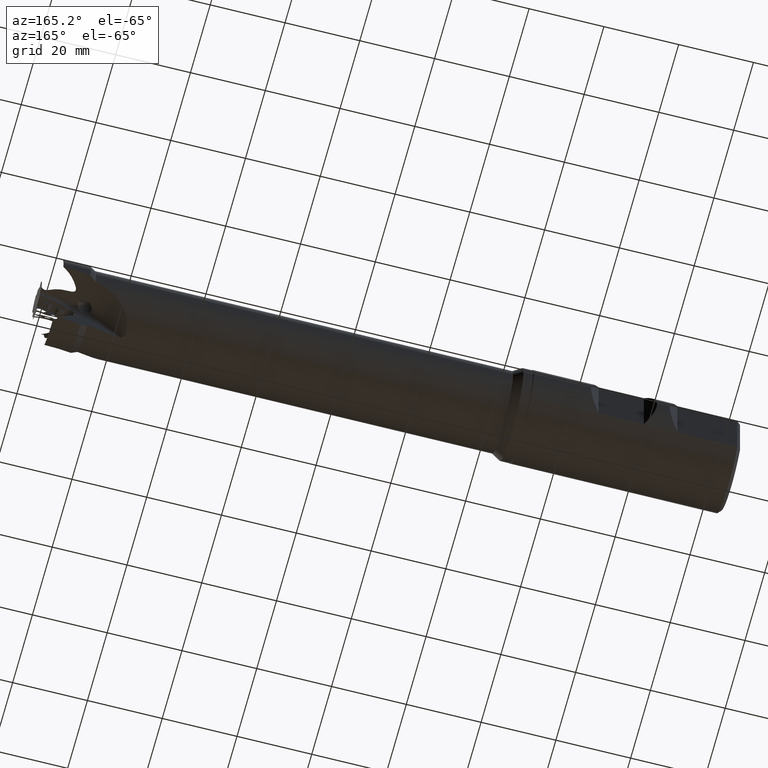
[diagram: clean part render]
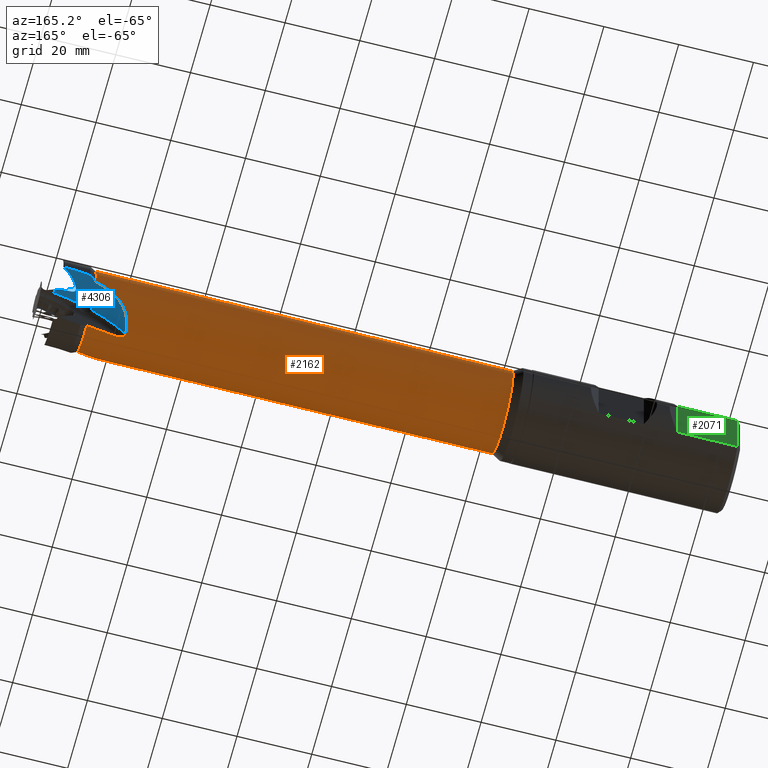
[diagram: same view with three faces highlighted in distinct colors, each labeled with its STEP entity id]
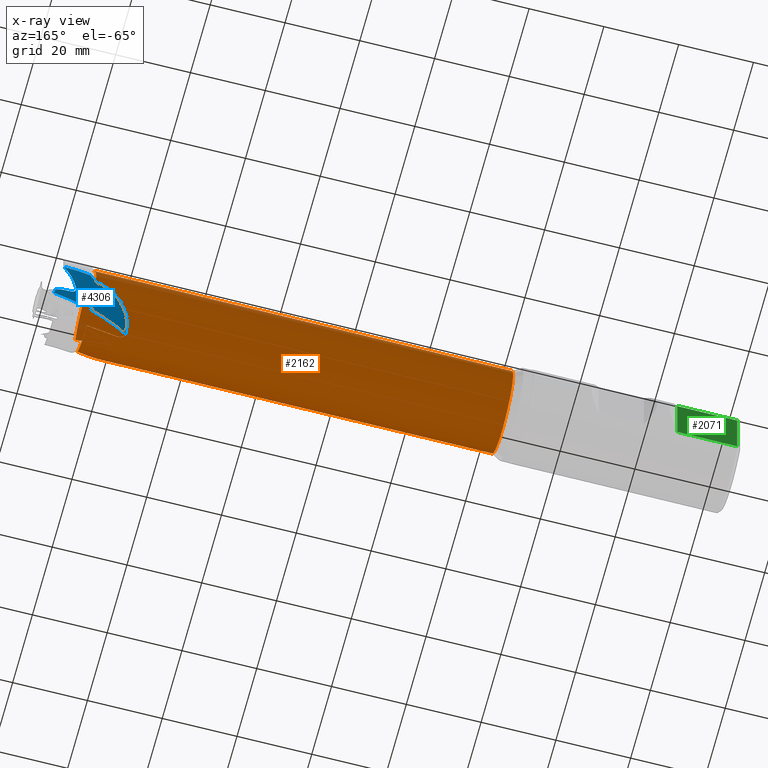
[diagram: x-ray of the same camera — body ghosted, the three highlighted faces saturated]
A machine part, auxiliary view with three faces highlighted in distinct colors.
The next image is the same camera in x-ray (body ghosted, the three faces saturated) — at least one of them is partly hidden behind the body in this view.
Their STEP definitions:

[orange] entity #2162 — the highlighted cylindrical surface (bore or boss wall) has radius 11 mm, axis along (1, -0, -0).
#28 = CARTESIAN_POINT ( 'NONE',  ( -13.03205080756886000, -7.992576462500347900, -7.557692868269073800 ) ) ;
#29 = CARTESIAN_POINT ( 'NONE',  ( 0.0000000000000000000, 0.0000000000000000000, 0.0000000000000000000 ) ) ;
#41 = ORIENTED_EDGE ( 'NONE', *, *, #3424, .F. ) ;
#76 = CARTESIAN_POINT ( 'NONE',  ( -21.74130905222150300, -9.710899927614750700, 5.167140499580635400 ) ) ;
#86 = CYLINDRICAL_SURFACE ( 'NONE', #2298, 10.99999999999999100 ) ;
#100 = EDGE_CURVE ( 'NONE', #151, #4425, #995, .T. ) ;
#114 = DIRECTION ( 'NONE',  ( 0.0000000000000000000, 0.0000000000000000000, -1.000000000000000000 ) ) ;
#129 = CARTESIAN_POINT ( 'NONE',  ( -23.07953077838762500, 6.821790193751641400, 8.636409143142937900 ) ) ;
#146 = VERTEX_POINT ( 'NONE', #2946 ) ;
#151 = VERTEX_POINT ( 'NONE', #2107 ) ;
#163 = CARTESIAN_POINT ( 'NONE',  ( -13.03205080756865200, -2.548865786671219000, 10.70062069234942500 ) ) ;
#168 = ORIENTED_EDGE ( 'NONE', *, *, #1180, .T. ) ;
#171 = CARTESIAN_POINT ( 'NONE',  ( -23.07953077838761400, -10.89024481231380600, 1.589639035504989900 ) ) ;
#184 = CARTESIAN_POINT ( 'NONE',  ( -19.21292515205994200, -9.992846947491623100, -4.620180101903342200 ) ) ;
#191 = CARTESIAN_POINT ( 'NONE',  ( -21.91978228289450900, 4.228789323558888000, 10.15973805421889700 ) ) ;
#240 = CARTESIAN_POINT ( 'NONE',  ( -23.01246835448725700, 9.077304187379464700, 6.215843227946305800 ) ) ;
#241 = CARTESIAN_POINT ( 'NONE',  ( -23.28485158735117700, 3.073329182164300300, -10.58547047038410900 ) ) ;
#253 = CARTESIAN_POINT ( 'NONE',  ( -19.73592067083128000, 8.710639764690409200, -6.738612503196965700 ) ) ;
#260 = CARTESIAN_POINT ( 'NONE',  ( -15.77118005887247600, -10.02731844747541200, 4.535187014893050000 ) ) ;
#283 = CARTESIAN_POINT ( 'NONE',  ( -23.34496563206964100, 1.438568477194369600, -10.90608010124612200 ) ) ;
#295 = CARTESIAN_POINT ( 'NONE',  ( -13.03205080756865200, -2.548865786671219000, 10.70062069234942500 ) ) ;
#375 = AXIS2_PLACEMENT_3D ( 'NONE', #1803, #4311, #2166 ) ;
#396 = B_SPLINE_CURVE_WITH_KNOTS ( 'NONE', 3,
 ( #983, #623, #1329, #3861, #1700, #4203, #2061, #4565, #2416, #283, #2786, #640 ),
 .UNSPECIFIED., .F., .F.,
 ( 4, 2, 2, 2, 2, 4 ),
 ( 0.009072709788329505800, 0.009755684572878274900, 0.01043865935742704400, 0.01112163414197581300, 0.01146312153425019800, 0.01180460892652458200 ),
 .UNSPECIFIED. ) ;
#428 = CARTESIAN_POINT ( 'NONE',  ( -23.21839118745727900, -10.03771621760265700, 4.500312577766781200 ) ) ;
#444 = VERTEX_POINT ( 'NONE', #2743 ) ;
#480 =( BOUNDED_CURVE ( )  B_SPLINE_CURVE ( 3, ( #2442, #2359, #2729, #580 ),
 .UNSPECIFIED., .F., .F. ) 
 B_SPLINE_CURVE_WITH_KNOTS ( ( 4, 4 ),
 ( 4.749592657969652800, 4.842060696496028900 ),
 .UNSPECIFIED. ) 
 CURVE ( )  GEOMETRIC_REPRESENTATION_ITEM ( )  RATIONAL_B_SPLINE_CURVE ( ( 1.000000000000000000, 0.9992875987359817200, 0.9992875987359817200, 1.000000000000000000 ) ) 
 REPRESENTATION_ITEM ( '' )  );
#485 = CARTESIAN_POINT ( 'NONE',  ( -22.78875681886087500, 5.971228752657064700, 9.244669097611666300 ) ) ;
#499 = CARTESIAN_POINT ( 'NONE',  ( -21.73755103584931400, 3.936967133131042300, 10.27578233868565100 ) ) ;
#526 = CARTESIAN_POINT ( 'NONE',  ( -22.78875681886088600, -10.99173266444119600, 0.5489012428032317100 ) ) ;
#540 = ORIENTED_EDGE ( 'NONE', *, *, #3811, .F. ) ;
#542 = CARTESIAN_POINT ( 'NONE',  ( -17.51894533413320700, -9.367757506604323900, -5.778467457408636300 ) ) ;
#549 = ORIENTED_EDGE ( 'NONE', *, *, #1823, .F. ) ;
#565 = EDGE_CURVE ( 'NONE', #146, #4324, #2037, .T. ) ;
#580 = CARTESIAN_POINT ( 'NONE',  ( -13.03205080756887400, 8.735103162017754400, 6.685654249877668300 ) ) ;
#597 = CARTESIAN_POINT ( 'NONE',  ( -23.27225541574616200, 8.856614562567633800, 6.524737535606920600 ) ) ;
#599 = CARTESIAN_POINT ( 'NONE',  ( -22.99321225105396500, 4.395710168411318000, -10.08946042443399300 ) ) ;
#613 = CARTESIAN_POINT ( 'NONE',  ( -18.10506540580957900, 9.486360138911599900, -5.586772378116485500 ) ) ;
#623 = CARTESIAN_POINT ( 'NONE',  ( -21.51212241063900900, 0.3811729720965574300, -10.99342943501793000 ) ) ;
#640 = CARTESIAN_POINT ( 'NONE',  ( -23.36141874420574600, 1.665372671988556000, -10.87320255782052500 ) ) ;
#660 = VERTEX_POINT ( 'NONE', #28 ) ;
#694 = ORIENTED_EDGE ( 'NONE', *, *, #4294, .T. ) ;
#768 = CARTESIAN_POINT ( 'NONE',  ( -22.51831614152833800, -9.791022588367043900, 5.013821636048956700 ) ) ;
#798 = CARTESIAN_POINT ( 'NONE',  ( -22.07920483904324600, -9.732141880908058000, 5.126952700826660000 ) ) ;
#838 = CARTESIAN_POINT ( 'NONE',  ( -23.36141874420570700, 8.583783299572241200, 6.878856319620618700 ) ) ;
#850 = CARTESIAN_POINT ( 'NONE',  ( -22.40270897330500000, 5.105156337920903700, 9.749237269724607900 ) ) ;
#861 = CARTESIAN_POINT ( 'NONE',  ( -21.14158615502429600, 3.086387537975946700, 10.56195831615423400 ) ) ;
#890 = CARTESIAN_POINT ( 'NONE',  ( -22.40270897330500700, -10.99566531206400200, -0.4534235559316804900 ) ) ;
#900 = CARTESIAN_POINT ( 'NONE',  ( -14.38685503440376000, -8.332374461027045600, -7.198342265860779000 ) ) ;
#953 = CARTESIAN_POINT ( 'NONE',  ( -23.36248930889522400, 8.655350230951366800, 6.789551498901871300 ) ) ;
#956 = CARTESIAN_POINT ( 'NONE',  ( -22.67070574921081400, 5.319103717637021900, -9.634177921183591000 ) ) ;
#966 = CARTESIAN_POINT ( 'NONE',  ( -15.68208632968364200, 10.19612725478903500, -4.197768030708415300 ) ) ;
#978 = ORIENTED_EDGE ( 'NONE', *, *, #1646, .T. ) ;
#983 = CARTESIAN_POINT ( 'NONE',  ( -21.28429994025444900, 0.4091460540864154700, -10.99238825307881300 ) ) ;
#987 = VERTEX_POINT ( 'NONE', #2995 ) ;
#995 = B_SPLINE_CURVE_WITH_KNOTS ( 'NONE', 3,
 ( #1852, #1128, #76, #798, #3661, #3294, #768, #2583, #2550, #428, #1493, #3674, #4361, #3308 ),
 .UNSPECIFIED., .F., .F.,
 ( 4, 2, 2, 2, 2, 2, 4 ),
 ( 0.008140158838446216700, 0.008819674801867780100, 0.009159432783578561700, 0.009499190765289341700, 0.01017870672871091400, 0.01051846471042169500, 0.01085822269213247900 ),
 .UNSPECIFIED. ) ;
#1121 = CARTESIAN_POINT ( 'NONE',  ( -23.36141874420567900, -10.24915597156069900, 3.994346238199798700 ) ) ;
#1128 = CARTESIAN_POINT ( 'NONE',  ( -21.50925147493631700, -9.711340542006466200, 5.166297400486886500 ) ) ;
#1178 = CARTESIAN_POINT ( 'NONE',  ( -23.35462492151241100, 8.129618271123117500, 7.445586311542647300 ) ) ;
#1180 = EDGE_CURVE ( 'NONE', #987, #3125, #480, .T. ) ;
#1209 = CARTESIAN_POINT ( 'NONE',  ( -20.46796700244545200, 2.266677217046954200, 10.76722853330104500 ) ) ;
#1210 = CARTESIAN_POINT ( 'NONE',  ( -124.5000000000000300, 0.0000000000000000000, -10.99999999999998400 ) ) ;
#1231 = CARTESIAN_POINT ( 'NONE',  ( -21.91978228289452700, -10.91298591252848900, -1.417630045655044400 ) ) ;
#1283 = CARTESIAN_POINT ( 'NONE',  ( -21.51135640983469300, 9.329952621126942300, 5.826899896562729900 ) ) ;
#1300 = CARTESIAN_POINT ( 'NONE',  ( -22.25275536631495800, 6.163304672857190500, -9.116831246816289500 ) ) ;
#1304 = EDGE_CURVE ( 'NONE', #146, #4363, #396, .T. ) ;
#1314 = CARTESIAN_POINT ( 'NONE',  ( -15.77118005887268700, 1.086072057927036400, -10.95150601479656600 ) ) ;
#1317 = CARTESIAN_POINT ( 'NONE',  ( -13.03205080756887400, 10.54144224917157800, -3.142927824080640400 ) ) ;
#1329 = CARTESIAN_POINT ( 'NONE',  ( -21.73861341900902400, 0.3805600569336363700, -10.99345549647515300 ) ) ;
#1389 = EDGE_CURVE ( 'NONE', #3365, #3125, #1693, .T. ) ;
#1493 = CARTESIAN_POINT ( 'NONE',  ( -23.27242152276220800, -10.07910764816188200, 4.407183400183929400 ) ) ;
#1502 = ORIENTED_EDGE ( 'NONE', *, *, #1304, .F. ) ;
#1508 = VERTEX_POINT ( 'NONE', #2751 ) ;
#1511 = CARTESIAN_POINT ( 'NONE',  ( -13.03205080756887400, 8.735103162017754400, 6.685654249877668300 ) ) ;
#1517 = ORIENTED_EDGE ( 'NONE', *, *, #565, .T. ) ;
#1529 = CIRCLE ( 'NONE', #4625, 10.99999999999998400 ) ;
#1575 = CARTESIAN_POINT ( 'NONE',  ( -19.21292515205988100, 0.9952301354381215500, 10.96414936360920200 ) ) ;
#1598 = CARTESIAN_POINT ( 'NONE',  ( -21.34890168892049900, -10.75622354847592300, -2.322728536572886700 ) ) ;
#1646 = EDGE_CURVE ( 'NONE', #151, #444, #2704, .T. ) ;
#1674 = CARTESIAN_POINT ( 'NONE',  ( -21.73755103584935400, 6.930604982495728100, -8.547404720498697400 ) ) ;
#1693 = CIRCLE ( 'NONE', #4537, 10.99999999999999800 ) ;
#1700 = CARTESIAN_POINT ( 'NONE',  ( -22.41241501392077100, 0.5019092375950965400, -10.98900140506325900 ) ) ;
#1803 = CARTESIAN_POINT ( 'NONE',  ( -13.03205080756887400, 0.0000000000000000000, 0.0000000000000000000 ) ) ;
#1807 = DIRECTION ( 'NONE',  ( 0.0000000000000000000, 0.0000000000000000000, -1.000000000000000000 ) ) ;
#1823 = EDGE_CURVE ( 'NONE', #3598, #444, #3449, .T. ) ;
#1842 = CARTESIAN_POINT ( 'NONE',  ( -13.03205080756887400, 0.0000000000000000000, 0.0000000000000000000 ) ) ;
#1852 = CARTESIAN_POINT ( 'NONE',  ( -21.28429994025367800, -9.724260502471143000, 5.141863249842379500 ) ) ;
#1895 = ORIENTED_EDGE ( 'NONE', *, *, #100, .F. ) ;
#1936 = CARTESIAN_POINT ( 'NONE',  ( -17.51894533413311800, -0.3204208597554136200, 11.00194970591603100 ) ) ;
#1946 = CARTESIAN_POINT ( 'NONE',  ( -23.36141874420567900, -10.24915597156069900, 3.994346238199798700 ) ) ;
#1962 = CARTESIAN_POINT ( 'NONE',  ( -20.70158456814000700, -10.54119693782615000, -3.156567538437514500 ) ) ;
#2015 = CARTESIAN_POINT ( 'NONE',  ( -22.18869381789749800, 9.298399069125574500, 5.877131287281701900 ) ) ;
#2028 = CARTESIAN_POINT ( 'NONE',  ( -21.14158615502437000, 7.603730446513907300, -7.953869171888002600 ) ) ;
#2037 =( BOUNDED_CURVE ( )  B_SPLINE_CURVE ( 3, ( #4256, #2116, #1314, #3839 ),
 .UNSPECIFIED., .F., .T. ) 
 B_SPLINE_CURVE_WITH_KNOTS ( ( 4, 4 ),
 ( 4.749592657969642100, 4.842060696496028900 ),
 .UNSPECIFIED. ) 
 CURVE ( )  GEOMETRIC_REPRESENTATION_ITEM ( )  RATIONAL_B_SPLINE_CURVE ( ( 1.000000000000000000, 0.9992875987359817200, 0.9992875987359817200, 1.000000000000000000 ) ) 
 REPRESENTATION_ITEM ( '' )  );
#2061 = CARTESIAN_POINT ( 'NONE',  ( -23.01161776743351700, 0.8435655382932294400, -10.96916667430144400 ) ) ;
#2079 = CARTESIAN_POINT ( 'NONE',  ( -124.5000000000000300, 0.0000000000000000000, 0.0000000000000000000 ) ) ;
#2084 = AXIS2_PLACEMENT_3D ( 'NONE', #4402, #2250, #114 ) ;
#2107 = CARTESIAN_POINT ( 'NONE',  ( -21.28429994025367800, -9.724260502471143000, 5.141863249842379500 ) ) ;
#2116 = CARTESIAN_POINT ( 'NONE',  ( -18.52389080438247100, 0.7480816777469094800, -10.97977278046110600 ) ) ;
#2162 = ADVANCED_FACE ( 'NONE', ( #4117, #2949 ), #86, .T. ) ;
#2166 = DIRECTION ( 'NONE',  ( 0.0000000000000000000, 0.0000000000000000000, -1.000000000000000000 ) ) ;
#2171 = DIRECTION ( 'NONE',  ( 1.000000000000000000, -0.0000000000000000000, -0.0000000000000000000 ) ) ;
#2202 = DIRECTION ( 'NONE',  ( 0.0000000000000000000, 0.0000000000000000000, -1.000000000000000000 ) ) ;
#2250 = DIRECTION ( 'NONE',  ( 1.000000000000000000, -0.0000000000000000000, -0.0000000000000000000 ) ) ;
#2257 = VERTEX_POINT ( 'NONE', #1210 ) ;
#2264 = CIRCLE ( 'NONE', #2084, 10.99999999999999800 ) ;
#2269 = CARTESIAN_POINT ( 'NONE',  ( -23.28485158735118100, 7.630621747280574000, 7.954316381138323100 ) ) ;
#2297 = CARTESIAN_POINT ( 'NONE',  ( -14.38685503440364100, -2.067760036857154900, 10.81521909002448300 ) ) ;
#2298 = AXIS2_PLACEMENT_3D ( 'NONE', #29, #2171, #1807 ) ;
#2306 = CARTESIAN_POINT ( 'NONE',  ( -23.28485158735117000, -10.70395092944478700, 2.631154089245776100 ) ) ;
#2319 = CARTESIAN_POINT ( 'NONE',  ( -19.73592067083120600, -10.19112949637321800, -4.174329067838319100 ) ) ;
#2359 = CARTESIAN_POINT ( 'NONE',  ( -18.52389080438186400, 9.134721316786773600, 6.137744127265039900 ) ) ;
#2376 = CARTESIAN_POINT ( 'NONE',  ( -22.82420080454923500, 9.155477543600994700, 6.098144030283623200 ) ) ;
#2396 = CARTESIAN_POINT ( 'NONE',  ( -20.46796700244554800, 8.191354829667881500, -7.346614318792609000 ) ) ;
#2403 = CARTESIAN_POINT ( 'NONE',  ( -18.52389080438198800, -9.882802994533676600, 4.842028653196042100 ) ) ;
#2416 = CARTESIAN_POINT ( 'NONE',  ( -23.27158098236582300, 1.220520608663554700, -10.93262968741745700 ) ) ;
#2437 = DIRECTION ( 'NONE',  ( 0.0000000000000000000, 0.0000000000000000000, -1.000000000000000000 ) ) ;
#2442 = CARTESIAN_POINT ( 'NONE',  ( -21.28429994025353300, 9.315114448384697700, 5.850525003236422000 ) ) ;
#2525 = CARTESIAN_POINT ( 'NONE',  ( -23.36141874420574600, 1.665372671988556000, -10.87320255782052500 ) ) ;
#2550 = CARTESIAN_POINT ( 'NONE',  ( -23.01326887727755000, -9.922037473923877500, 4.752621699332667800 ) ) ;
#2583 = CARTESIAN_POINT ( 'NONE',  ( -22.82514342633751200, -9.859195956888221700, 4.879178002469774200 ) ) ;
#2638 = CARTESIAN_POINT ( 'NONE',  ( -22.99321225105397200, 6.539873953831961000, 8.851526885734731600 ) ) ;
#2643 = CARTESIAN_POINT ( 'NONE',  ( -13.03205080756887400, 10.54144224917157800, -3.142927824080640400 ) ) ;
#2652 = B_SPLINE_CURVE_WITH_KNOTS ( 'NONE', 3,
 ( #3813, #1283, #4155, #2015, #4527, #2376, #240, #2745, #597, #3111, #953, #3477 ),
 .UNSPECIFIED., .F., .F.,
 ( 4, 2, 2, 2, 2, 4 ),
 ( 0.009497919899537979300, 0.01018265644393116100, 0.01086739298832434300, 0.01155212953271752200, 0.01189449780491411300, 0.01223686607711070400 ),
 .UNSPECIFIED. ) ;
#2674 = CARTESIAN_POINT ( 'NONE',  ( -22.99321225105396800, -10.93558412224321900, 1.237933538699263100 ) ) ;
#2688 = CARTESIAN_POINT ( 'NONE',  ( -18.10506540580950100, -9.581466874065876400, -5.422042680687287200 ) ) ;
#2704 =( BOUNDED_CURVE ( )  B_SPLINE_CURVE ( 3, ( #4181, #2403, #260, #2764 ),
 .UNSPECIFIED., .F., .T. ) 
 B_SPLINE_CURVE_WITH_KNOTS ( ( 4, 4 ),
 ( 4.749592657969650100, 4.842060696496028000 ),
 .UNSPECIFIED. ) 
 CURVE ( )  GEOMETRIC_REPRESENTATION_ITEM ( )  RATIONAL_B_SPLINE_CURVE ( ( 1.000000000000000000, 0.9992875987359817200, 0.9992875987359817200, 1.000000000000000000 ) ) 
 REPRESENTATION_ITEM ( '' )  );
#2729 = CARTESIAN_POINT ( 'NONE',  ( -15.77118005887239600, 8.941246389548423300, 6.416318999903490200 ) ) ;
#2743 = CARTESIAN_POINT ( 'NONE',  ( -13.03205080756887200, -10.15749800232235200, 4.221994118046275400 ) ) ;
#2745 = CARTESIAN_POINT ( 'NONE',  ( -23.21776421847572200, 8.916849693902140200, 6.441919832046487200 ) ) ;
#2747 = CARTESIAN_POINT ( 'NONE',  ( -23.07953077838762800, 4.068454618562231700, -10.22604817864792700 ) ) ;
#2751 = CARTESIAN_POINT ( 'NONE',  ( -23.36141874420570700, 8.583783299572241200, 6.878856319620618700 ) ) ;
#2759 = CARTESIAN_POINT ( 'NONE',  ( -19.21292515206001600, 8.997616812053481200, -6.343969261705861800 ) ) ;
#2764 = CARTESIAN_POINT ( 'NONE',  ( -13.03205080756887200, -10.15749800232235200, 4.221994118046275400 ) ) ;
#2786 = CARTESIAN_POINT ( 'NONE',  ( -23.36248374420239700, 1.552836969063104300, -10.89043886729584200 ) ) ;
#2793 = ORIENTED_EDGE ( 'NONE', *, *, #1389, .F. ) ;
#2808 = EDGE_CURVE ( 'NONE', #987, #1508, #2652, .T. ) ;
#2834 = ORIENTED_EDGE ( 'NONE', *, *, #2808, .F. ) ;
#2946 = CARTESIAN_POINT ( 'NONE',  ( -21.28429994025444900, 0.4091460540864154700, -10.99238825307881300 ) ) ;
#2949 = FACE_OUTER_BOUND ( 'NONE', #3342, .T. ) ;
#2995 = CARTESIAN_POINT ( 'NONE',  ( -21.28429994025353300, 9.315114448384697700, 5.850525003236422000 ) ) ;
#3000 = CARTESIAN_POINT ( 'NONE',  ( -22.67070574921080700, 5.683890965505673500, 9.423567905429676400 ) ) ;
#3017 = CARTESIAN_POINT ( 'NONE',  ( -21.34890168892047800, 3.366569855470785000, 10.47652711005099300 ) ) ;
#3048 = CARTESIAN_POINT ( 'NONE',  ( -22.67070574921080400, -11.00299468314265100, 0.2106100157539149100 ) ) ;
#3059 = CARTESIAN_POINT ( 'NONE',  ( -15.68208632968351800, -8.733437381182170600, -6.731221207512000100 ) ) ;
#3103 = ORIENTED_EDGE ( 'NONE', *, *, #3820, .F. ) ;
#3111 = CARTESIAN_POINT ( 'NONE',  ( -23.34473835298149100, 8.725912995138964200, 6.698526988801936500 ) ) ;
#3113 = CARTESIAN_POINT ( 'NONE',  ( -22.78875681886089000, 5.020503911784177700, -9.793570340414888200 ) ) ;
#3125 = VERTEX_POINT ( 'NONE', #1511 ) ;
#3129 = CARTESIAN_POINT ( 'NONE',  ( -17.51894533413330300, 9.688178366359704100, -5.223482248507408200 ) ) ;
#3186 = CARTESIAN_POINT ( 'NONE',  ( -13.03205080756887600, 1.422394840304676700, -10.90764836792397200 ) ) ;
#3242 = ORIENTED_EDGE ( 'NONE', *, *, #4249, .F. ) ;
#3293 = CARTESIAN_POINT ( 'NONE',  ( -23.36141874420574600, 1.665372671988556000, -10.87320255782052500 ) ) ;
#3294 = CARTESIAN_POINT ( 'NONE',  ( -22.41002719393602800, -9.772191981842683000, 5.050274906268980700 ) ) ;
#3308 = CARTESIAN_POINT ( 'NONE',  ( -23.36141874420567900, -10.24915597156069900, 3.994346238199798700 ) ) ;
#3342 = EDGE_LOOP ( 'NONE', ( #694 ) ) ;
#3360 = CARTESIAN_POINT ( 'NONE',  ( -22.25275536631492900, 4.813755125330097900, 9.895994041365799600 ) ) ;
#3365 = VERTEX_POINT ( 'NONE', #2643 ) ;
#3374 = CARTESIAN_POINT ( 'NONE',  ( -20.70158456813995000, 2.536930791864866000, 10.70722810367093200 ) ) ;
#3399 = CARTESIAN_POINT ( 'NONE',  ( -22.25275536631494300, -10.97705979818726400, -0.7791627945495012100 ) ) ;
#3415 = CARTESIAN_POINT ( 'NONE',  ( -13.03205080756886000, -7.992576462500347900, -7.557692868269073800 ) ) ;
#3424 = EDGE_CURVE ( 'NONE', #4425, #660, #4104, .T. ) ;
#3425 = B_SPLINE_CURVE_WITH_KNOTS ( 'NONE', 3,
 ( #838, #1178, #2269, #129, #2638, #485, #3000, #850, #3360, #191, #499, #3017, #861, #3374, #1209, #3734, #1575, #4082, #1936, #4444, #2297, #163 ),
 .UNSPECIFIED., .F., .F.,
 ( 4, 2, 2, 2, 2, 2, 2, 2, 2, 2, 4 ),
 ( 0.0000000000000000000, 0.002146312635660540300, 0.003219468953490811500, 0.004292625271321083200, 0.005365781589151353600, 0.006438937906981624800, 0.007512094224811895200, 0.008585250542642166400, 0.01073156317830271200, 0.01287787581396326000, 0.01717050108528435000 ),
 .UNSPECIFIED. ) ;
#3449 = CIRCLE ( 'NONE', #375, 10.99999999999999800 ) ;
#3477 = CARTESIAN_POINT ( 'NONE',  ( -23.36141874420570700, 8.583783299572241200, 6.878856319620618700 ) ) ;
#3478 = CARTESIAN_POINT ( 'NONE',  ( -22.40270897330501800, 5.890508974143129400, -9.295813713792918900 ) ) ;
#3489 = CARTESIAN_POINT ( 'NONE',  ( -14.38685503440393800, 10.40013449788418300, -3.616876824163728800 ) ) ;
#3572 = B_SPLINE_CURVE_WITH_KNOTS ( 'NONE', 3,
 ( #3293, #4158, #241, #2747, #599, #3113, #956, #3478, #1300, #3829, #1674, #4174, #2028, #4540, #2396, #253, #2759, #613, #3129, #966, #3489, #1317 ),
 .UNSPECIFIED., .F., .F.,
 ( 4, 2, 2, 2, 2, 2, 2, 2, 2, 2, 4 ),
 ( 3.114133650677805100E-017, 0.002146312635660533400, 0.003219468953490781200, 0.004292625271321029400, 0.005365781589151277300, 0.006438937906981525100, 0.007512094224811773800, 0.008585250542642020700, 0.01073156317830250900, 0.01287787581396300000, 0.01717050108528398200 ),
 .UNSPECIFIED. ) ;
#3598 = VERTEX_POINT ( 'NONE', #295 ) ;
#3661 = CARTESIAN_POINT ( 'NONE',  ( -22.19050868822300900, -9.742806951060242000, 5.106733346597680500 ) ) ;
#3674 = CARTESIAN_POINT ( 'NONE',  ( -23.34448925625925900, -10.16374165009456300, 4.208328905423769600 ) ) ;
#3734 = CARTESIAN_POINT ( 'NONE',  ( -19.73592067083116000, 1.480489731682795400, 10.91294157103528300 ) ) ;
#3763 = CARTESIAN_POINT ( 'NONE',  ( -21.73755103584932900, -10.86757211562676100, -1.728377618186948800 ) ) ;
#3811 = EDGE_CURVE ( 'NONE', #660, #4324, #2264, .T. ) ;
#3813 = CARTESIAN_POINT ( 'NONE',  ( -21.28429994025353300, 9.315114448384697700, 5.850525003236422000 ) ) ;
#3820 = EDGE_CURVE ( 'NONE', #1508, #3598, #3425, .T. ) ;
#3829 = CARTESIAN_POINT ( 'NONE',  ( -21.91978228289454500, 6.684196588969617100, -8.742108008563848300 ) ) ;
#3839 = CARTESIAN_POINT ( 'NONE',  ( -13.03205080756887600, 1.422394840304676700, -10.90764836792397200 ) ) ;
#3861 = CARTESIAN_POINT ( 'NONE',  ( -22.18718846648480900, 0.4401745404978871200, -10.99122996228404300 ) ) ;
#4082 = CARTESIAN_POINT ( 'NONE',  ( -18.10506540580940200, 0.09510673515424890300, 11.00881505880376600 ) ) ;
#4090 = CARTESIAN_POINT ( 'NONE',  ( -23.35462492151236400, -10.51287602742715100, 3.317662790091367300 ) ) ;
#4104 = B_SPLINE_CURVE_WITH_KNOTS ( 'NONE', 3,
 ( #1946, #4090, #2306, #171, #2674, #526, #3048, #890, #3399, #1231, #3763, #1598, #4106, #1962, #4472, #2319, #184, #2688, #542, #3059, #900, #3415 ),
 .UNSPECIFIED., .F., .F.,
 ( 4, 2, 2, 2, 2, 2, 2, 2, 2, 2, 4 ),
 ( 0.0000000000000000000, 0.002146312635660519500, 0.003219468953490779000, 0.004292625271321039000, 0.005365781589151298900, 0.006438937906981558000, 0.007512094224811818900, 0.008585250542642079700, 0.01073156317830259100, 0.01287787581396310600, 0.01717050108528413200 ),
 .UNSPECIFIED. ) ;
#4106 = CARTESIAN_POINT ( 'NONE',  ( -21.14158615502432800, -10.69011798448985600, -2.608089144266234600 ) ) ;
#4117 = FACE_OUTER_BOUND ( 'NONE', #4568, .T. ) ;
#4155 = CARTESIAN_POINT ( 'NONE',  ( -21.74074150828614900, 9.330271945223163500, 5.826398788689494300 ) ) ;
#4158 = CARTESIAN_POINT ( 'NONE',  ( -23.35462492151239300, 2.383257756304132200, -10.76324910163404200 ) ) ;
#4174 = CARTESIAN_POINT ( 'NONE',  ( -21.34890168892052400, 7.389653693005136900, -8.153798573478102400 ) ) ;
#4181 = CARTESIAN_POINT ( 'NONE',  ( -21.28429994025367800, -9.724260502471143000, 5.141863249842379500 ) ) ;
#4203 = CARTESIAN_POINT ( 'NONE',  ( -22.82238897545270400, 0.7022550418299933200, -10.97801906627465800 ) ) ;
#4249 = EDGE_CURVE ( 'NONE', #4363, #3365, #3572, .T. ) ;
#4256 = CARTESIAN_POINT ( 'NONE',  ( -21.28429994025444900, 0.4091460540864154700, -10.99238825307881300 ) ) ;
#4294 = EDGE_CURVE ( 'NONE', #2257, #2257, #1529, .T. ) ;
#4311 = DIRECTION ( 'NONE',  ( 1.000000000000000000, -0.0000000000000000000, -0.0000000000000000000 ) ) ;
#4324 = VERTEX_POINT ( 'NONE', #3186 ) ;
#4349 = DIRECTION ( 'NONE',  ( 1.000000000000000000, -0.0000000000000000000, -0.0000000000000000000 ) ) ;
#4361 = CARTESIAN_POINT ( 'NONE',  ( -23.36248802145397000, -10.20764916922756500, 4.100849196537491400 ) ) ;
#4363 = VERTEX_POINT ( 'NONE', #2525 ) ;
#4402 = CARTESIAN_POINT ( 'NONE',  ( -13.03205080756887400, 0.0000000000000000000, 0.0000000000000000000 ) ) ;
#4425 = VERTEX_POINT ( 'NONE', #1121 ) ;
#4444 = CARTESIAN_POINT ( 'NONE',  ( -15.68208632968339700, -1.462689873606892700, 10.92898923822039600 ) ) ;
#4472 = CARTESIAN_POINT ( 'NONE',  ( -20.46796700244549800, -10.45803204671485000, -3.420614214508435500 ) ) ;
#4527 = CARTESIAN_POINT ( 'NONE',  ( -22.41400288385831300, 9.265527272235157600, 5.929598134185175300 ) ) ;
#4537 = AXIS2_PLACEMENT_3D ( 'NONE', #1842, #4349, #2202 ) ;
#4540 = CARTESIAN_POINT ( 'NONE',  ( -20.70158456814004900, 8.004266145961272700, -7.550660565233425100 ) ) ;
#4565 = CARTESIAN_POINT ( 'NONE',  ( -23.21741632265697000, 1.119832893655300800, -10.94324126467053300 ) ) ;
#4568 = EDGE_LOOP ( 'NONE', ( #3103, #2834, #168, #2793, #3242, #1502, #1517, #540, #41, #1895, #978, #549 ) ) ;
#4579 = DIRECTION ( 'NONE',  ( 1.000000000000000000, -0.0000000000000000000, -0.0000000000000000000 ) ) ;
#4625 = AXIS2_PLACEMENT_3D ( 'NONE', #2079, #4579, #2437 ) ;

[blue] entity #4306 — the highlighted cylindrical surface (partial cylindrical patch) has radius 26.3192 mm, axis along (0.1219, -0.9925, -0).
#9 = CARTESIAN_POINT ( 'NONE',  ( -4.158860193738016500, 5.360805816860009900, -1.683938035824915600 ) ) ;
#26 = CARTESIAN_POINT ( 'NONE',  ( -7.240187564296872000, 5.700868761505882200, -1.912175881932156400 ) ) ;
#64 = CARTESIAN_POINT ( 'NONE',  ( -10.75196325818235200, 4.406716919018625900, -2.666128973131967500 ) ) ;
#79 = CARTESIAN_POINT ( 'NONE',  ( -13.93523586296846200, 3.051895300248535800, -3.848320909357287900 ) ) ;
#110 = CARTESIAN_POINT ( 'NONE',  ( -8.749888422160783100, 6.682657697680294700, -2.135288582310784100 ) ) ;
#116 = CARTESIAN_POINT ( 'NONE',  ( -3.526050500247685200, 4.100849652170370300, -1.680794614580656000 ) ) ;
#241 = CARTESIAN_POINT ( 'NONE',  ( -23.28485158735117700, 3.073329182164300300, -10.58547047038410900 ) ) ;
#253 = CARTESIAN_POINT ( 'NONE',  ( -19.73592067083128000, 8.710639764690409200, -6.738612503196965700 ) ) ;
#264 = VERTEX_POINT ( 'NONE', #4221 ) ;
#294 = CARTESIAN_POINT ( 'NONE',  ( -3.343246485139332400, 2.612030424708532200, -28.00000000000000000 ) ) ;
#319 = CARTESIAN_POINT ( 'NONE',  ( -4.481419488993315000, 11.88170566306019400, -1.680794614580656000 ) ) ;
#326 = EDGE_CURVE ( 'NONE', #3365, #2117, #3656, .T. ) ;
#330 = CARTESIAN_POINT ( 'NONE',  ( -8.492273822323023000, 5.982446933141469400, -2.103708087106522600 ) ) ;
#361 = ORIENTED_EDGE ( 'NONE', *, *, #3083, .T. ) ;
#386 = CARTESIAN_POINT ( 'NONE',  ( -3.660987757751966900, 5.199825423328620700, -1.680794614580656000 ) ) ;
#414 = CARTESIAN_POINT ( 'NONE',  ( -11.28007512482567900, 4.638149941620752300, -2.810203998972237800 ) ) ;
#431 = CARTESIAN_POINT ( 'NONE',  ( -13.96976808857759900, 2.818522373893353800, -3.875635307712798300 ) ) ;
#454 = CARTESIAN_POINT ( 'NONE',  ( -8.644986485417620200, 7.056266017028915100, -2.107512144687421900 ) ) ;
#459 = FACE_OUTER_BOUND ( 'NONE', #3850, .T. ) ;
#467 = LINE ( 'NONE', #3934, #4164 ) ;
#518 = EDGE_CURVE ( 'NONE', #2117, #3904, #1810, .T. ) ;
#599 = CARTESIAN_POINT ( 'NONE',  ( -22.99321225105396500, 4.395710168411318000, -10.08946042443399300 ) ) ;
#613 = CARTESIAN_POINT ( 'NONE',  ( -18.10506540580957900, 9.486360138911599900, -5.586772378116485500 ) ) ;
#645 = DIRECTION ( 'NONE',  ( 0.1218693434051477300, -0.9925461516413219800, -0.0000000000000000000 ) ) ;
#695 = CARTESIAN_POINT ( 'NONE',  ( -6.982639439081471400, 5.683873239527351000, -1.879472104927117500 ) ) ;
#716 = CARTESIAN_POINT ( 'NONE',  ( -8.628054060122009300, 6.120533500558287300, -2.125483149832438500 ) ) ;
#730 = CARTESIAN_POINT ( 'NONE',  ( -3.908736290546780600, 5.287814528041883100, -1.680794614580659800 ) ) ;
#775 = CARTESIAN_POINT ( 'NONE',  ( -10.26605559627739900, 3.388571771266562400, -2.568132615407225000 ) ) ;
#789 = CARTESIAN_POINT ( 'NONE',  ( -11.95481863583083300, 4.669526506205643000, -3.021559138916824600 ) ) ;
#807 = CARTESIAN_POINT ( 'NONE',  ( -8.739852035016825800, 6.355931560622102500, -2.140969421230440000 ) ) ;
#831 = CARTESIAN_POINT ( 'NONE',  ( -8.361783759685556200, 7.636284529581702800, -2.045418327296165500 ) ) ;
#905 = EDGE_CURVE ( 'NONE', #4401, #1968, #4235, .T. ) ;
#956 = CARTESIAN_POINT ( 'NONE',  ( -22.67070574921081400, 5.319103717637021900, -9.634177921183591000 ) ) ;
#966 = CARTESIAN_POINT ( 'NONE',  ( -15.68208632968364200, 10.19612725478903500, -4.197768030708415300 ) ) ;
#1011 = DIRECTION ( 'NONE',  ( 0.1218693434051477300, -0.9925461516413219800, -0.0000000000000000000 ) ) ;
#1054 = CARTESIAN_POINT ( 'NONE',  ( -4.664738904552453200, 5.471343506971007500, -1.697289242152917100 ) ) ;
#1056 = DIRECTION ( 'NONE',  ( -0.1218693434051220000, 0.9925461516413250900, 0.0000000000000000000 ) ) ;
#1132 = CARTESIAN_POINT ( 'NONE',  ( -12.60504465317327800, 4.505540641121781300, -3.252606689711379200 ) ) ;
#1135 = EDGE_CURVE ( 'NONE', #2499, #264, #1291, .T. ) ;
#1148 = ORIENTED_EDGE ( 'NONE', *, *, #4502, .T. ) ;
#1173 = CARTESIAN_POINT ( 'NONE',  ( -7.949845293798842000, 8.284952797347317600, -1.967904559335719200 ) ) ;
#1195 = AXIS2_PLACEMENT_3D ( 'NONE', #2791, #645, #3158 ) ;
#1200 = CARTESIAN_POINT ( 'NONE',  ( -13.96976808857759900, 2.818522373893353800, -3.875635307712798300 ) ) ;
#1248 = VECTOR ( 'NONE', #1056, 1000.000000000000200 ) ;
#1291 = CIRCLE ( 'NONE', #1195, 26.31920538541934800 ) ;
#1300 = CARTESIAN_POINT ( 'NONE',  ( -22.25275536631495800, 6.163304672857190500, -9.116831246816289500 ) ) ;
#1317 = CARTESIAN_POINT ( 'NONE',  ( -13.03205080756887400, 10.54144224917157800, -3.142927824080640400 ) ) ;
#1407 = CARTESIAN_POINT ( 'NONE',  ( -5.689946946030074700, 5.605372043074588400, -1.749397114012169800 ) ) ;
#1446 = CARTESIAN_POINT ( 'NONE',  ( -7.624566365758448100, 5.742461944347759600, -1.966253404291048000 ) ) ;
#1478 = CARTESIAN_POINT ( 'NONE',  ( -10.28905966460468200, 3.744196868444539500, -2.562701103986980500 ) ) ;
#1496 = CARTESIAN_POINT ( 'NONE',  ( -13.18705758866454000, 4.173276094263353100, -3.485542662954753000 ) ) ;
#1513 = DIRECTION ( 'NONE',  ( 0.1218693434051477300, -0.9925461516413219800, -0.0000000000000000000 ) ) ;
#1541 = CARTESIAN_POINT ( 'NONE',  ( -7.170549852700962600, 9.308959252723765200, -1.847347174918917400 ) ) ;
#1659 = ORIENTED_EDGE ( 'NONE', *, *, #1135, .T. ) ;
#1674 = CARTESIAN_POINT ( 'NONE',  ( -21.73755103584935400, 6.930604982495728100, -8.547404720498697400 ) ) ;
#1776 = CARTESIAN_POINT ( 'NONE',  ( -10.18398444645805200, 11.78665945107671000, -2.273235478735550000 ) ) ;
#1797 = DIRECTION ( 'NONE',  ( -0.1218693434051220000, 0.9925461516413250900, 0.0000000000000000000 ) ) ;
#1810 = B_SPLINE_CURVE_WITH_KNOTS ( 'NONE', 3,
 ( #3213, #1776, #3580, #4605, #2459, #319 ),
 .UNSPECIFIED., .F., .F.,
 ( 4, 2, 4 ),
 ( 3.324383805864000800E-017, 0.003439158824163208100, 0.006878317648326382300 ),
 .UNSPECIFIED. ) ;
#1841 = CARTESIAN_POINT ( 'NONE',  ( -10.42376597288297700, 4.072433617383683000, -2.587742327415483200 ) ) ;
#1858 = CARTESIAN_POINT ( 'NONE',  ( -13.65655382335338300, 3.685465420779622500, -3.697783638378290500 ) ) ;
#1869 = CIRCLE ( 'NONE', #3772, 26.31920538541934800 ) ;
#1905 = CARTESIAN_POINT ( 'NONE',  ( -5.326175596266908800, 11.07004175403838900, -1.680794614580710400 ) ) ;
#1968 = VERTEX_POINT ( 'NONE', #3305 ) ;
#2028 = CARTESIAN_POINT ( 'NONE',  ( -21.14158615502437000, 7.603730446513907300, -7.953869171888002600 ) ) ;
#2100 = EDGE_CURVE ( 'NONE', #2499, #4401, #3170, .T. ) ;
#2117 = VERTEX_POINT ( 'NONE', #2132 ) ;
#2130 = CARTESIAN_POINT ( 'NONE',  ( -8.005795255574373200, 5.804612091861054400, -2.024062725561522200 ) ) ;
#2132 = CARTESIAN_POINT ( 'NONE',  ( -11.29999999999994400, 11.72134241723334500, -2.571017685269231500 ) ) ;
#2169 = CARTESIAN_POINT ( 'NONE',  ( -8.373331442407588200, 5.920002084146577900, -2.083767073200319100 ) ) ;
#2198 = CARTESIAN_POINT ( 'NONE',  ( -10.65778529070216000, 4.336942664258038400, -2.642429865344075000 ) ) ;
#2220 = CARTESIAN_POINT ( 'NONE',  ( -13.86545537269219300, 3.274530019393383700, -3.806803905629457100 ) ) ;
#2243 = CARTESIAN_POINT ( 'NONE',  ( -8.766240728439093700, 6.550909849563885800, -2.141429991581093700 ) ) ;
#2300 = B_SPLINE_CURVE_WITH_KNOTS ( 'NONE', 3,
 ( #3277, #775, #3648, #1478, #3989, #1841, #4347, #2198, #64, #2573, #414, #2931, #789, #3298, #1132, #3664, #1496, #4008, #1858, #4365, #2220, #79, #2586, #431 ),
 .UNSPECIFIED., .F., .F.,
 ( 4, 2, 2, 2, 2, 2, 2, 2, 2, 2, 2, 4 ),
 ( 4.770489558936219500E-018, 0.0003550089419784924100, 0.0007100178839569800600, 0.001065026825935467800, 0.001420035767913955300, 0.002130053651870934600, 0.002840071535827914200, 0.003550089419784894100, 0.004260107303741872800, 0.004970125187698851800, 0.005325134129677340500, 0.005680143071655829200 ),
 .UNSPECIFIED. ) ;
#2326 = CARTESIAN_POINT ( 'NONE',  ( -8.722250877157927500, 6.292426002699470700, -2.139118964550937600 ) ) ;
#2346 = ORIENTED_EDGE ( 'NONE', *, *, #518, .T. ) ;
#2389 = CARTESIAN_POINT ( 'NONE',  ( -4.481419488993315000, 11.88170566306019400, -1.680794614580656000 ) ) ;
#2393 = CARTESIAN_POINT ( 'NONE',  ( -13.03205080756887400, 10.54144224917157800, -3.142927824080640400 ) ) ;
#2396 = CARTESIAN_POINT ( 'NONE',  ( -20.46796700244554800, 8.191354829667881500, -7.346614318792609000 ) ) ;
#2459 = CARTESIAN_POINT ( 'NONE',  ( -5.637849178792194500, 11.88170566306019700, -1.680794614580669600 ) ) ;
#2475 = CARTESIAN_POINT ( 'NONE',  ( -6.208501875170115100, 5.634438254999546200, -1.792485101686552800 ) ) ;
#2490 = ORIENTED_EDGE ( 'NONE', *, *, #905, .F. ) ;
#2496 = CARTESIAN_POINT ( 'NONE',  ( -7.752690621735093000, 5.759110401005854900, -1.985165061732737900 ) ) ;
#2499 = VERTEX_POINT ( 'NONE', #116 ) ;
#2519 = ORIENTED_EDGE ( 'NONE', *, *, #2100, .F. ) ;
#2525 = CARTESIAN_POINT ( 'NONE',  ( -23.36141874420574600, 1.665372671988556000, -10.87320255782052500 ) ) ;
#2534 = CARTESIAN_POINT ( 'NONE',  ( -8.130892073236504200, 5.832764808423812400, -2.044087709022869500 ) ) ;
#2573 = CARTESIAN_POINT ( 'NONE',  ( -11.05589787444334100, 4.577622239839814500, -2.746344631960749600 ) ) ;
#2586 = CARTESIAN_POINT ( 'NONE',  ( -13.95912983666454100, 2.937239052084279500, -3.864719516279513800 ) ) ;
#2614 = CARTESIAN_POINT ( 'NONE',  ( -8.689470855457791700, 6.934741047737519500, -2.118376702919897000 ) ) ;
#2643 = CARTESIAN_POINT ( 'NONE',  ( -13.03205080756887400, 10.54144224917157800, -3.142927824080640400 ) ) ;
#2707 = CARTESIAN_POINT ( 'NONE',  ( -11.88978670237079500, 11.33571008298831200, -2.739809406458135300 ) ) ;
#2747 = CARTESIAN_POINT ( 'NONE',  ( -23.07953077838762800, 4.068454618562231700, -10.22604817864792700 ) ) ;
#2759 = CARTESIAN_POINT ( 'NONE',  ( -19.21292515206001600, 8.997616812053481200, -6.343969261705861800 ) ) ;
#2791 = CARTESIAN_POINT ( 'NONE',  ( -3.526050500247045700, 4.100849652170447600, -28.00000000000000000 ) ) ;
#2931 = CARTESIAN_POINT ( 'NONE',  ( -11.73076729955478800, 4.684076757206564200, -2.948270612170162100 ) ) ;
#2979 = CARTESIAN_POINT ( 'NONE',  ( -8.489979357245214700, 7.414079596804183000, -2.072030571301483700 ) ) ;
#3083 = EDGE_CURVE ( 'NONE', #264, #3376, #2300, .T. ) ;
#3113 = CARTESIAN_POINT ( 'NONE',  ( -22.78875681886089000, 5.020503911784177700, -9.793570340414888200 ) ) ;
#3129 = CARTESIAN_POINT ( 'NONE',  ( -17.51894533413330300, 9.688178366359704100, -5.223482248507408200 ) ) ;
#3158 = DIRECTION ( 'NONE',  ( 0.9925461516413219800, 0.1218693434051477100, 0.0000000000000000000 ) ) ;
#3170 = LINE ( 'NONE', #3214, #1248 ) ;
#3212 = CARTESIAN_POINT ( 'NONE',  ( -3.660987757751966900, 5.199825423328620700, -1.680794614580656000 ) ) ;
#3213 = CARTESIAN_POINT ( 'NONE',  ( -11.29999999999994400, 11.72134241723334500, -2.571017685269231500 ) ) ;
#3214 = CARTESIAN_POINT ( 'NONE',  ( -3.526050500247685200, 4.100849652170370300, -1.680794614580656000 ) ) ;
#3277 = CARTESIAN_POINT ( 'NONE',  ( -10.28560411761204600, 3.270880829362644300, -2.577172486778314600 ) ) ;
#3293 = CARTESIAN_POINT ( 'NONE',  ( -23.36141874420574600, 1.665372671988556000, -10.87320255782052500 ) ) ;
#3298 = CARTESIAN_POINT ( 'NONE',  ( -12.39543090106828600, 4.579594139892314800, -3.174952570085455500 ) ) ;
#3305 = CARTESIAN_POINT ( 'NONE',  ( -4.449423755956783700, 11.62112132899359600, -1.680794614580652900 ) ) ;
#3337 = CARTESIAN_POINT ( 'NONE',  ( -8.092151282619335400, 8.071958551770393300, -1.993466729333127400 ) ) ;
#3365 = VERTEX_POINT ( 'NONE', #2643 ) ;
#3376 = VERTEX_POINT ( 'NONE', #1200 ) ;
#3478 = CARTESIAN_POINT ( 'NONE',  ( -22.40270897330501800, 5.890508974143129400, -9.295813713792918900 ) ) ;
#3489 = CARTESIAN_POINT ( 'NONE',  ( -14.38685503440393800, 10.40013449788418300, -3.616876824163728800 ) ) ;
#3572 = B_SPLINE_CURVE_WITH_KNOTS ( 'NONE', 3,
 ( #3293, #4158, #241, #2747, #599, #3113, #956, #3478, #1300, #3829, #1674, #4174, #2028, #4540, #2396, #253, #2759, #613, #3129, #966, #3489, #1317 ),
 .UNSPECIFIED., .F., .F.,
 ( 4, 2, 2, 2, 2, 2, 2, 2, 2, 2, 4 ),
 ( 3.114133650677805100E-017, 0.002146312635660533400, 0.003219468953490781200, 0.004292625271321029400, 0.005365781589151277300, 0.006438937906981525100, 0.007512094224811773800, 0.008585250542642020700, 0.01073156317830250900, 0.01287787581396300000, 0.01717050108528398200 ),
 .UNSPECIFIED. ) ;
#3580 = CARTESIAN_POINT ( 'NONE',  ( -9.057350604991352600, 11.82424109925505300, -2.051786852932199400 ) ) ;
#3648 = CARTESIAN_POINT ( 'NONE',  ( -10.26132893934922800, 3.506727836829993900, -2.563077276417407500 ) ) ;
#3656 = B_SPLINE_CURVE_WITH_KNOTS ( 'NONE', 3,
 ( #2393, #4536, #2707, #4549 ),
 .UNSPECIFIED., .F., .F.,
 ( 4, 4 ),
 ( 2.568559866009249700E-007, 0.002172639330015217100 ),
 .UNSPECIFIED. ) ;
#3664 = CARTESIAN_POINT ( 'NONE',  ( -13.00382588688463100, 4.301076337405044500, -3.409039098204583500 ) ) ;
#3681 = CARTESIAN_POINT ( 'NONE',  ( -3.526050500247045700, 4.100849652170447600, -28.00000000000000000 ) ) ;
#3704 = CARTESIAN_POINT ( 'NONE',  ( -7.500924673721260500, 8.909853783575501400, -1.893680130767858600 ) ) ;
#3705 = EDGE_CURVE ( 'NONE', #1968, #3904, #467, .T. ) ;
#3772 = AXIS2_PLACEMENT_3D ( 'NONE', #3681, #1513, #4023 ) ;
#3829 = CARTESIAN_POINT ( 'NONE',  ( -21.91978228289454500, 6.684196588969617100, -8.742108008563848300 ) ) ;
#3850 = EDGE_LOOP ( 'NONE', ( #2490, #2519, #1659, #361, #1148, #4513, #4534, #2346, #4331 ) ) ;
#3904 = VERTEX_POINT ( 'NONE', #2389 ) ;
#3925 = CARTESIAN_POINT ( 'NONE',  ( -4.920139863791932000, 5.510990366565228400, -1.707508162013399200 ) ) ;
#3934 = CARTESIAN_POINT ( 'NONE',  ( -3.526050500247685200, 4.100849652170370300, -1.680794614580656000 ) ) ;
#3989 = CARTESIAN_POINT ( 'NONE',  ( -10.32122929528069100, 3.858324381706614400, -2.567464150636793000 ) ) ;
#4008 = CARTESIAN_POINT ( 'NONE',  ( -13.51269220058174800, 3.866855506533164000, -3.629518892369411700 ) ) ;
#4023 = DIRECTION ( 'NONE',  ( 0.9925461516413219800, 0.1218693434051477100, 0.0000000000000000000 ) ) ;
#4045 = CARTESIAN_POINT ( 'NONE',  ( -6.116735068709769700, 10.42451462428656100, -1.730532541923716100 ) ) ;
#4158 = CARTESIAN_POINT ( 'NONE',  ( -23.35462492151239300, 2.383257756304132200, -10.76324910163404200 ) ) ;
#4164 = VECTOR ( 'NONE', #1797, 1000.000000000000200 ) ;
#4174 = CARTESIAN_POINT ( 'NONE',  ( -21.34890168892052400, 7.389653693005136900, -8.153798573478102400 ) ) ;
#4218 = DIRECTION ( 'NONE',  ( 0.9925461516413219800, 0.1218693434051477100, 0.0000000000000000000 ) ) ;
#4221 = CARTESIAN_POINT ( 'NONE',  ( -10.28560411761204600, 3.270880829362644300, -2.577172486778314600 ) ) ;
#4235 = B_SPLINE_CURVE_WITH_KNOTS ( 'NONE', 3,
 ( #3212, #730, #9, #1054, #3925, #1407, #2475, #695, #26, #1446, #2496, #2130, #2534, #2169, #330, #716, #4251, #2326, #807, #2243, #110, #2614, #454, #2979, #831, #3337, #1173, #3704, #1541, #4045, #1905, #4414 ),
 .UNSPECIFIED., .F., .F.,
 ( 4, 2, 2, 2, 2, 2, 2, 2, 2, 2, 2, 2, 2, 2, 2, 4 ),
 ( 0.0000000000000000000, 0.0007759060847263093400, 0.001551812169452618700, 0.003103624338905236500, 0.003879530423631546000, 0.004267483465994701000, 0.004655436508357855600, 0.005043389550721009300, 0.005237366071902587400, 0.005431342593084165600, 0.005819295635447322700, 0.006207248677810479000, 0.006983154762536791600, 0.007759060847263105900, 0.009310873016715733700, 0.01241449735562098800 ),
 .UNSPECIFIED. ) ;
#4249 = EDGE_CURVE ( 'NONE', #4363, #3365, #3572, .T. ) ;
#4251 = CARTESIAN_POINT ( 'NONE',  ( -8.666253749631877700, 6.174248062884258200, -2.131366107249808500 ) ) ;
#4259 = AXIS2_PLACEMENT_3D ( 'NONE', #294, #1011, #4218 ) ;
#4263 = CYLINDRICAL_SURFACE ( 'NONE', #4259, 26.31920538541934500 ) ;
#4306 = ADVANCED_FACE ( 'NONE', ( #459 ), #4263, .F. ) ;
#4331 = ORIENTED_EDGE ( 'NONE', *, *, #3705, .F. ) ;
#4347 = CARTESIAN_POINT ( 'NONE',  ( -10.49284025336790200, 4.169144111960029000, -2.603034962298588900 ) ) ;
#4363 = VERTEX_POINT ( 'NONE', #2525 ) ;
#4365 = CARTESIAN_POINT ( 'NONE',  ( -13.81916815560618000, 3.382561884621548400, -3.781521202529353900 ) ) ;
#4401 = VERTEX_POINT ( 'NONE', #386 ) ;
#4414 = CARTESIAN_POINT ( 'NONE',  ( -4.449423755956783700, 11.62112132899359600, -1.680794614580652900 ) ) ;
#4502 = EDGE_CURVE ( 'NONE', #3376, #4363, #1869, .T. ) ;
#4513 = ORIENTED_EDGE ( 'NONE', *, *, #4249, .T. ) ;
#4534 = ORIENTED_EDGE ( 'NONE', *, *, #326, .T. ) ;
#4536 = CARTESIAN_POINT ( 'NONE',  ( -12.46820977486523000, 10.94429653701075000, -2.931089132508141000 ) ) ;
#4540 = CARTESIAN_POINT ( 'NONE',  ( -20.70158456814004900, 8.004266145961272700, -7.550660565233425100 ) ) ;
#4549 = CARTESIAN_POINT ( 'NONE',  ( -11.29999999999994400, 11.72134241723334500, -2.571017685269231500 ) ) ;
#4605 = CARTESIAN_POINT ( 'NONE',  ( -6.784288114828472200, 11.87183995114979900, -1.755540668130854300 ) ) ;

[green] entity #2071 — the highlighted planar face has unit normal (0, -1, 0).
#55 = VERTEX_POINT ( 'NONE', #2249 ) ;
#192 = EDGE_CURVE ( 'NONE', #1430, #1270, #1428, .T. ) ;
#412 = FACE_OUTER_BOUND ( 'NONE', #4524, .T. ) ;
#554 = ORIENTED_EDGE ( 'NONE', *, *, #2357, .T. ) ;
#677 = PLANE ( 'NONE',  #2077 ) ;
#816 = LINE ( 'NONE', #3388, #3562 ) ;
#1270 = VERTEX_POINT ( 'NONE', #2379 ) ;
#1428 = LINE ( 'NONE', #2827, #4170 ) ;
#1430 = VERTEX_POINT ( 'NONE', #2677 ) ;
#1756 = DIRECTION ( 'NONE',  ( 1.000000000000000000, 3.252606517456510300E-016, 0.0000000000000000000 ) ) ;
#1799 = DIRECTION ( 'NONE',  ( 1.000000000000000000, -0.0000000000000000000, -0.0000000000000000000 ) ) ;
#1816 = LINE ( 'NONE', #2073, #2768 ) ;
#1959 = CARTESIAN_POINT ( 'NONE',  ( -184.8000000000000100, 9.700000000000073900, -7.884161337770690300 ) ) ;
#2071 = ADVANCED_FACE ( 'NONE', ( #412 ), #677, .F. ) ;
#2073 = CARTESIAN_POINT ( 'NONE',  ( -184.8000000000000100, 9.700000000000011700, -25.00000000000000000 ) ) ;
#2077 = AXIS2_PLACEMENT_3D ( 'NONE', #3197, #3914, #1756 ) ;
#2249 = CARTESIAN_POINT ( 'NONE',  ( -168.8000000000000100, 9.700000000000017100, -7.884161337770756000 ) ) ;
#2357 = EDGE_CURVE ( 'NONE', #55, #2615, #816, .T. ) ;
#2379 = CARTESIAN_POINT ( 'NONE',  ( -168.8000000000000100, 9.700000000000017100, 7.884161337770693800 ) ) ;
#2427 = EDGE_CURVE ( 'NONE', #55, #1270, #4505, .T. ) ;
#2615 = VERTEX_POINT ( 'NONE', #1959 ) ;
#2641 = ORIENTED_EDGE ( 'NONE', *, *, #192, .T. ) ;
#2677 = CARTESIAN_POINT ( 'NONE',  ( -184.8000000000000100, 9.700000000000073900, 7.884161337770690300 ) ) ;
#2768 = VECTOR ( 'NONE', #4574, 1000.000000000000000 ) ;
#2827 = CARTESIAN_POINT ( 'NONE',  ( -3.155028321932838800E-015, 9.700000000000073900, 7.884161337770690300 ) ) ;
#3197 = CARTESIAN_POINT ( 'NONE',  ( -184.8000000000000100, 9.700000000000011700, -25.00000000000000000 ) ) ;
#3388 = CARTESIAN_POINT ( 'NONE',  ( -3.155028321932838800E-015, 9.700000000000073900, -7.884161337770690300 ) ) ;
#3454 = VECTOR ( 'NONE', #3637, 1000.000000000000000 ) ;
#3562 = VECTOR ( 'NONE', #4095, 1000.000000000000000 ) ;
#3592 = CARTESIAN_POINT ( 'NONE',  ( -168.8000000000000100, 9.700000000000017100, -25.00000000000000000 ) ) ;
#3637 = DIRECTION ( 'NONE',  ( -0.0000000000000000000, -0.0000000000000000000, 1.000000000000000000 ) ) ;
#3855 = ORIENTED_EDGE ( 'NONE', *, *, #3938, .T. ) ;
#3914 = DIRECTION ( 'NONE',  ( 3.252606517456510300E-016, -1.000000000000000000, 0.0000000000000000000 ) ) ;
#3938 = EDGE_CURVE ( 'NONE', #2615, #1430, #1816, .T. ) ;
#4084 = ORIENTED_EDGE ( 'NONE', *, *, #2427, .F. ) ;
#4095 = DIRECTION ( 'NONE',  ( -1.000000000000000000, 0.0000000000000000000, 0.0000000000000000000 ) ) ;
#4170 = VECTOR ( 'NONE', #1799, 1000.000000000000000 ) ;
#4505 = LINE ( 'NONE', #3592, #3454 ) ;
#4524 = EDGE_LOOP ( 'NONE', ( #4084, #554, #3855, #2641 ) ) ;
#4574 = DIRECTION ( 'NONE',  ( -0.0000000000000000000, -0.0000000000000000000, 1.000000000000000000 ) ) ;